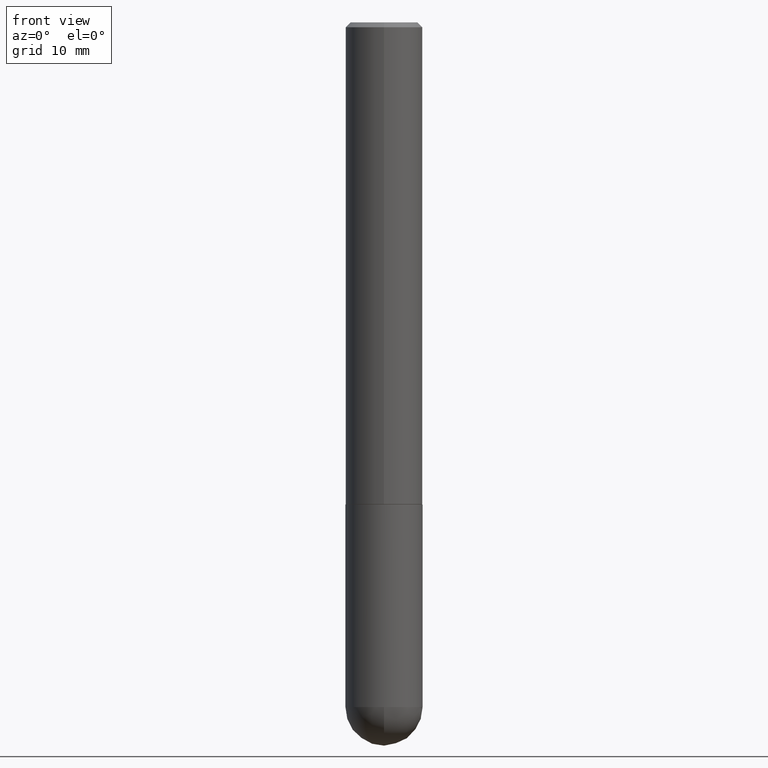
[diagram: clean part render]
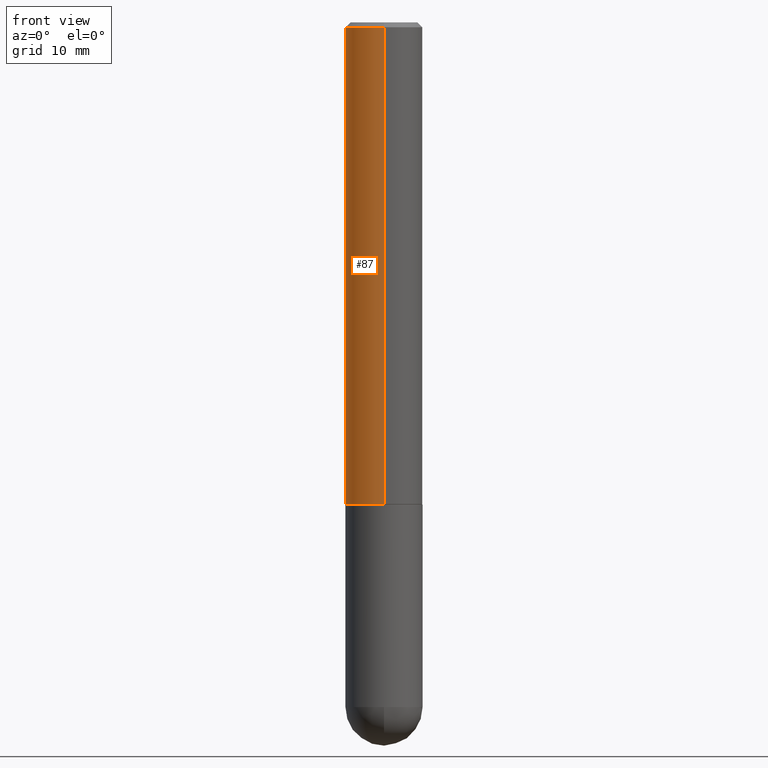
[diagram: same view with one face highlighted and labeled with its STEP entity id]
A machine part, front view. The second image highlights one B-rep face of the part: STEP entity #87.
In plain terms, the highlighted cylindrical surface (partial cylindrical patch) has radius 4.0005 mm, axis along (-0, 0, 1).
Its self-contained STEP definition (entity closure, byte-faithful):
#18 = EDGE_CURVE ( 'NONE', #45, #38, #117, .T. ) ;
#27 = CARTESIAN_POINT ( 'NONE',  ( 4.905212484552274391E-31, -6.962520248246417464E-17, -0.02000000000000003164 ) ) ;
#38 = VERTEX_POINT ( 'NONE', #274 ) ;
#45 = VERTEX_POINT ( 'NONE', #340 ) ;
#50 = DIRECTION ( 'NONE',  ( -6.982962677686265922E-15, -1.000000000000000000, 3.481260124123204048E-15 ) ) ;
#51 = CIRCLE ( 'NONE', #261, 0.1575000000000001954 ) ;
#59 = EDGE_CURVE ( 'NONE', #384, #326, #311, .T. ) ;
#65 = EDGE_CURVE ( 'NONE', #45, #384, #51, .T. ) ;
#70 = VECTOR ( 'NONE', #314, 39.37007874015748143 ) ;
#86 = DIRECTION ( 'NONE',  ( -6.982962677686265922E-15, -1.000000000000000000, 3.469013325287948955E-15 ) ) ;
#87 = ADVANCED_FACE ( 'NONE', ( #277 ), #347, .T. ) ;
#111 = CARTESIAN_POINT ( 'NONE',  ( 1.119104808822158195E-15, 0.1575000000000000844, -5.482984695494049531E-16 ) ) ;
#114 = DIRECTION ( 'NONE',  ( -2.452606242276134078E-29, 3.481260124123204048E-15, 1.000000000000000000 ) ) ;
#117 = LINE ( 'NONE', #111, #70 ) ;
#121 = CIRCLE ( 'NONE', #141, 0.1574999999999999456 ) ;
#140 = ORIENTED_EDGE ( 'NONE', *, *, #65, .T. ) ;
#141 = AXIS2_PLACEMENT_3D ( 'NONE', #27, #214, #408 ) ;
#192 = ORIENTED_EDGE ( 'NONE', *, *, #223, .F. ) ;
#214 = DIRECTION ( 'NONE',  ( -2.452606242276133797E-29, 3.481260124123203654E-15, 1.000000000000000000 ) ) ;
#216 = CARTESIAN_POINT ( 'NONE',  ( -1.080528434649015385E-15, -0.1575000000000000289, -0.01999999999999948347 ) ) ;
#223 = EDGE_CURVE ( 'NONE', #38, #326, #121, .T. ) ;
#241 = DIRECTION ( 'NONE',  ( -2.452606242276133797E-29, 3.481260124123203654E-15, 1.000000000000000000 ) ) ;
#261 = AXIS2_PLACEMENT_3D ( 'NONE', #374, #241, #86 ) ;
#263 = CARTESIAN_POINT ( 'NONE',  ( -1.099816621735539951E-15, -0.1575000000000070510, -1.967499999999999138 ) ) ;
#267 = ORIENTED_EDGE ( 'NONE', *, *, #59, .T. ) ;
#274 = CARTESIAN_POINT ( 'NONE',  ( 1.099816621735586889E-15, 0.1574999999999998901, -0.02000000000000057634 ) ) ;
#277 = FACE_OUTER_BOUND ( 'NONE', #390, .T. ) ;
#307 = AXIS2_PLACEMENT_3D ( 'NONE', #338, #402, #50 ) ;
#311 = LINE ( 'NONE', #395, #333 ) ;
#314 = DIRECTION ( 'NONE',  ( -2.452606242276134078E-29, 3.481260124123204048E-15, 1.000000000000000000 ) ) ;
#326 = VERTEX_POINT ( 'NONE', #216 ) ;
#333 = VECTOR ( 'NONE', #114, 39.37007874015748143 ) ;
#336 = ORIENTED_EDGE ( 'NONE', *, *, #18, .F. ) ;
#338 = CARTESIAN_POINT ( 'NONE',  ( 0.000000000000000000, 0.000000000000000000, 0.000000000000000000 ) ) ;
#340 = CARTESIAN_POINT ( 'NONE',  ( 1.119104808822183241E-15, 0.1574999999999933398, -1.967500000000000249 ) ) ;
#347 = CYLINDRICAL_SURFACE ( 'NONE', #307, 0.1575000000000000844 ) ;
#374 = CARTESIAN_POINT ( 'NONE',  ( 4.825502781678292621E-29, -6.849379294212400691E-15, -1.967499999999999805 ) ) ;
#384 = VERTEX_POINT ( 'NONE', #263 ) ;
#390 = EDGE_LOOP ( 'NONE', ( #336, #140, #267, #192 ) ) ;
#395 = CARTESIAN_POINT ( 'NONE',  ( -1.099816621735587480E-15, -0.1575000000000000844, 5.482984695494049531E-16 ) ) ;
#402 = DIRECTION ( 'NONE',  ( -2.452606242276133797E-29, 3.481260124123203654E-15, 1.000000000000000000 ) ) ;
#408 = DIRECTION ( 'NONE',  ( -6.982962677686265922E-15, -1.000000000000000000, 3.469013325287954477E-15 ) ) ;